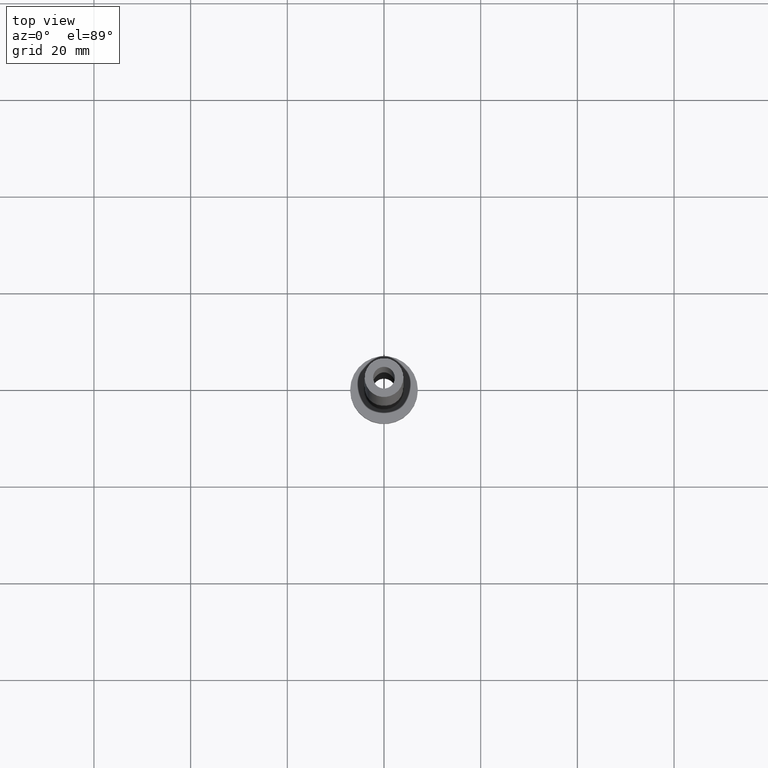
[diagram: clean part render]
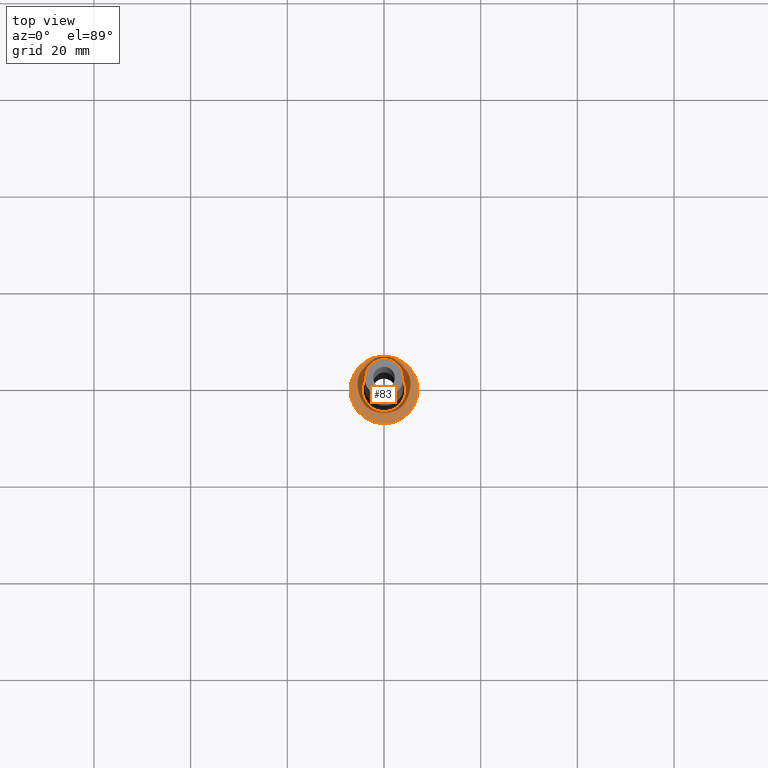
[diagram: same view with one face highlighted and labeled with its STEP entity id]
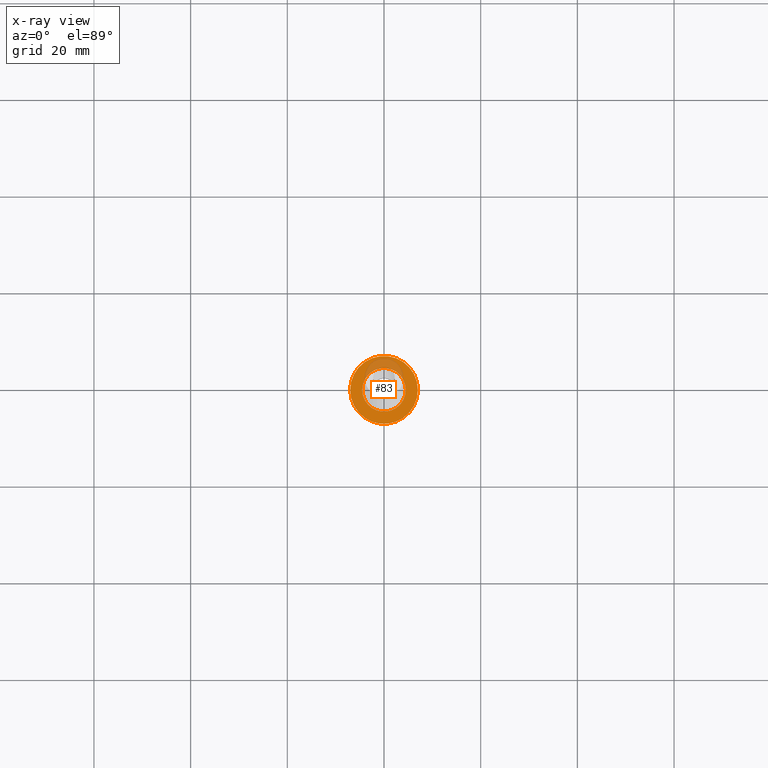
[diagram: x-ray of the same camera — body ghosted, the highlighted face saturated]
A machine part, top view. The second image highlights one B-rep face of the part: STEP entity #83.
The next image is the same camera in x-ray: the body ghosted, the highlighted face saturated — about 17% of this face is hidden behind the body in this view.
In plain terms, the highlighted planar face has unit normal (0, 0, 1).
Its self-contained STEP definition (entity closure, byte-faithful):
#2 = VERTEX_POINT ( 'NONE', #202 ) ;
#5 = AXIS2_PLACEMENT_3D ( 'NONE', #313, #118, #311 ) ;
#24 = FACE_BOUND ( 'NONE', #299, .T. ) ;
#28 = PLANE ( 'NONE',  #42 ) ;
#29 = CIRCLE ( 'NONE', #232, 4.500000000000000888 ) ;
#32 = DIRECTION ( 'NONE',  ( 0.000000000000000000, 0.000000000000000000, 1.000000000000000000 ) ) ;
#42 = AXIS2_PLACEMENT_3D ( 'NONE', #263, #32, #414 ) ;
#51 = ORIENTED_EDGE ( 'NONE', *, *, #133, .T. ) ;
#80 = VERTEX_POINT ( 'NONE', #333 ) ;
#83 = ADVANCED_FACE ( 'NONE', ( #24, #134 ), #28, .T. ) ;
#92 = CIRCLE ( 'NONE', #5, 7.000000000000000000 ) ;
#105 = EDGE_CURVE ( 'NONE', #364, #2, #365, .T. ) ;
#113 = CARTESIAN_POINT ( 'NONE',  ( 0.000000000000000000, 0.000000000000000000, 5.000000000000000000 ) ) ;
#118 = DIRECTION ( 'NONE',  ( 0.000000000000000000, 0.000000000000000000, 1.000000000000000000 ) ) ;
#132 = DIRECTION ( 'NONE',  ( 0.000000000000000000, 0.000000000000000000, 1.000000000000000000 ) ) ;
#133 = EDGE_CURVE ( 'NONE', #80, #151, #92, .T. ) ;
#134 = FACE_OUTER_BOUND ( 'NONE', #139, .T. ) ;
#138 = DIRECTION ( 'NONE',  ( 1.000000000000000000, 0.000000000000000000, 0.000000000000000000 ) ) ;
#139 = EDGE_LOOP ( 'NONE', ( #51, #220 ) ) ;
#145 = AXIS2_PLACEMENT_3D ( 'NONE', #113, #219, #244 ) ;
#151 = VERTEX_POINT ( 'NONE', #398 ) ;
#202 = CARTESIAN_POINT ( 'NONE',  ( 4.500000000000000888, 0.000000000000000000, 5.000000000000002665 ) ) ;
#219 = DIRECTION ( 'NONE',  ( -0.000000000000000000, -0.000000000000000000, -1.000000000000000000 ) ) ;
#220 = ORIENTED_EDGE ( 'NONE', *, *, #301, .T. ) ;
#232 = AXIS2_PLACEMENT_3D ( 'NONE', #456, #447, #138 ) ;
#233 = CARTESIAN_POINT ( 'NONE',  ( 0.000000000000000000, 0.000000000000000000, 5.000000000000000000 ) ) ;
#244 = DIRECTION ( 'NONE',  ( 1.000000000000000000, 0.000000000000000000, 0.000000000000000000 ) ) ;
#263 = CARTESIAN_POINT ( 'NONE',  ( 0.000000000000000000, 0.000000000000000000, 5.000000000000000000 ) ) ;
#274 = CARTESIAN_POINT ( 'NONE',  ( -4.500000000000000888, 5.510910596163088569E-16, 5.000000000000002665 ) ) ;
#278 = CIRCLE ( 'NONE', #358, 7.000000000000000000 ) ;
#289 = EDGE_CURVE ( 'NONE', #2, #364, #29, .T. ) ;
#299 = EDGE_LOOP ( 'NONE', ( #339, #312 ) ) ;
#301 = EDGE_CURVE ( 'NONE', #151, #80, #278, .T. ) ;
#311 = DIRECTION ( 'NONE',  ( 1.000000000000000000, 0.000000000000000000, 0.000000000000000000 ) ) ;
#312 = ORIENTED_EDGE ( 'NONE', *, *, #105, .T. ) ;
#313 = CARTESIAN_POINT ( 'NONE',  ( 0.000000000000000000, 0.000000000000000000, 5.000000000000000000 ) ) ;
#331 = DIRECTION ( 'NONE',  ( 1.000000000000000000, 0.000000000000000000, 0.000000000000000000 ) ) ;
#333 = CARTESIAN_POINT ( 'NONE',  ( -7.000000000000000000, 0.000000000000000000, 5.000000000000000000 ) ) ;
#339 = ORIENTED_EDGE ( 'NONE', *, *, #289, .T. ) ;
#358 = AXIS2_PLACEMENT_3D ( 'NONE', #233, #132, #331 ) ;
#364 = VERTEX_POINT ( 'NONE', #274 ) ;
#365 = CIRCLE ( 'NONE', #145, 4.500000000000000888 ) ;
#398 = CARTESIAN_POINT ( 'NONE',  ( 7.000000000000000000, 8.572527594031473190E-16, 5.000000000000000000 ) ) ;
#414 = DIRECTION ( 'NONE',  ( 1.000000000000000000, 0.000000000000000000, -0.000000000000000000 ) ) ;
#447 = DIRECTION ( 'NONE',  ( -0.000000000000000000, -0.000000000000000000, -1.000000000000000000 ) ) ;
#456 = CARTESIAN_POINT ( 'NONE',  ( 0.000000000000000000, 0.000000000000000000, 5.000000000000000000 ) ) ;